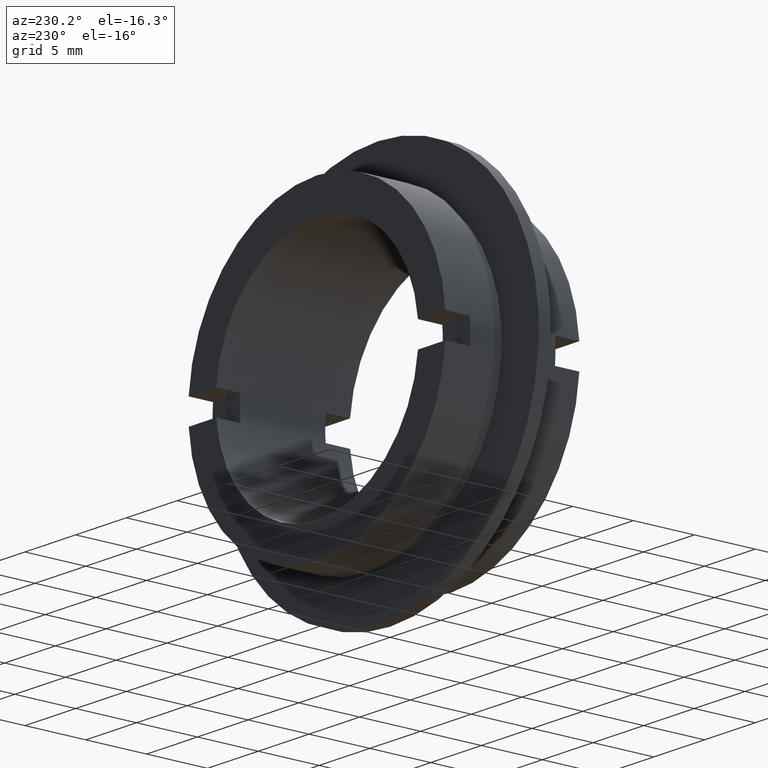
[diagram: clean part render]
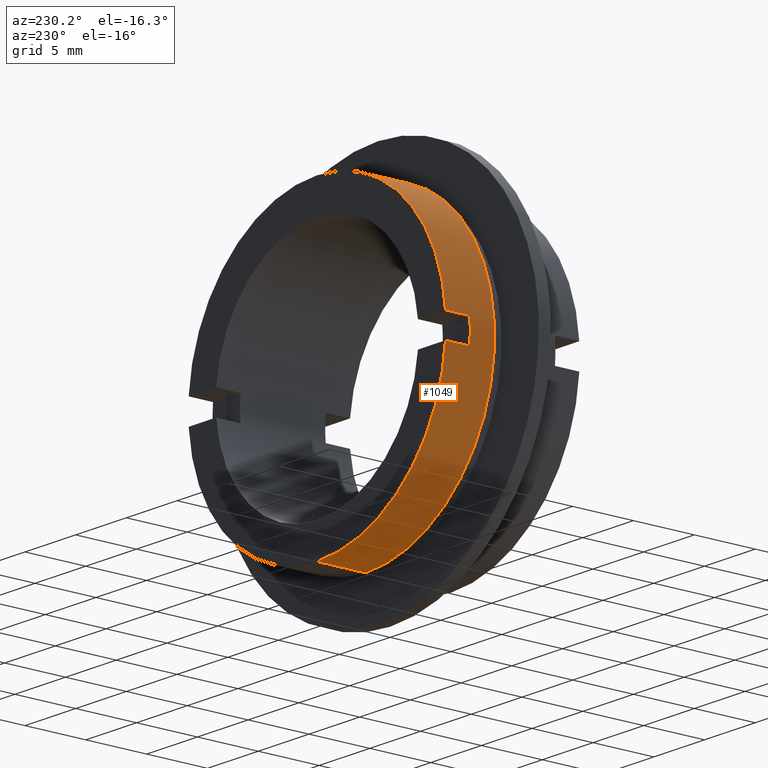
[diagram: same view with one face highlighted and labeled with its STEP entity id]
A machine part, auxiliary view. The second image highlights one B-rep face of the part: STEP entity #1049.
In plain terms, the highlighted cylindrical surface (partial cylindrical patch) has radius 12.7 mm, axis along (-0, 1, -0).
Its self-contained STEP definition (entity closure, byte-faithful):
#1 = EDGE_CURVE ( 'NONE', #981, #309, #409, .T. ) ;
#30 = EDGE_CURVE ( 'NONE', #789, #313, #533, .T. ) ;
#31 = DIRECTION ( 'NONE',  ( 0.0000000000000000000, 0.0000000000000000000, 1.000000000000000000 ) ) ;
#34 = DIRECTION ( 'NONE',  ( 0.0000000000000000000, 0.0000000000000000000, 1.000000000000000000 ) ) ;
#45 = ORIENTED_EDGE ( 'NONE', *, *, #30, .T. ) ;
#86 = CARTESIAN_POINT ( 'NONE',  ( -12.66056870760551300, 9.000000000000000000, -0.9999999999999974500 ) ) ;
#136 = DIRECTION ( 'NONE',  ( -0.0000000000000000000, 1.000000000000000000, -0.0000000000000000000 ) ) ;
#139 = ORIENTED_EDGE ( 'NONE', *, *, #591, .F. ) ;
#186 = CARTESIAN_POINT ( 'NONE',  ( -12.66056870760551300, 11.00000000000000000, -1.000000000000000000 ) ) ;
#196 = CIRCLE ( 'NONE', #801, 12.69999999999999800 ) ;
#200 = VECTOR ( 'NONE', #325, 1000.000000000000000 ) ;
#204 = DIRECTION ( 'NONE',  ( -0.0000000000000000000, 1.000000000000000000, -0.0000000000000000000 ) ) ;
#205 = CARTESIAN_POINT ( 'NONE',  ( 0.0000000000000000000, 6.999999999999999100, 12.69999999999999800 ) ) ;
#250 = AXIS2_PLACEMENT_3D ( 'NONE', #821, #136, #34 ) ;
#262 = CARTESIAN_POINT ( 'NONE',  ( 1.555301434917138200E-015, 6.999999999999999100, -12.69999999999999800 ) ) ;
#266 = AXIS2_PLACEMENT_3D ( 'NONE', #1119, #664, #471 ) ;
#287 = EDGE_CURVE ( 'NONE', #915, #313, #356, .T. ) ;
#289 = CARTESIAN_POINT ( 'NONE',  ( 0.0000000000000000000, 11.00000000000000000, 0.0000000000000000000 ) ) ;
#309 = VERTEX_POINT ( 'NONE', #693 ) ;
#311 = VERTEX_POINT ( 'NONE', #186 ) ;
#312 = DIRECTION ( 'NONE',  ( 0.0000000000000000000, 1.000000000000000000, 0.0000000000000000000 ) ) ;
#313 = VERTEX_POINT ( 'NONE', #1101 ) ;
#325 = DIRECTION ( 'NONE',  ( -0.0000000000000000000, 1.000000000000000000, -0.0000000000000000000 ) ) ;
#334 = AXIS2_PLACEMENT_3D ( 'NONE', #289, #386, #978 ) ;
#346 = EDGE_CURVE ( 'NONE', #426, #915, #749, .T. ) ;
#351 = EDGE_CURVE ( 'NONE', #981, #789, #196, .T. ) ;
#356 = CIRCLE ( 'NONE', #266, 12.69999999999999800 ) ;
#370 = ORIENTED_EDGE ( 'NONE', *, *, #287, .F. ) ;
#386 = DIRECTION ( 'NONE',  ( -0.0000000000000000000, 1.000000000000000000, -0.0000000000000000000 ) ) ;
#404 = DIRECTION ( 'NONE',  ( -0.0000000000000000000, 1.000000000000000000, -0.0000000000000000000 ) ) ;
#409 = LINE ( 'NONE', #610, #1037 ) ;
#426 = VERTEX_POINT ( 'NONE', #598 ) ;
#445 = CARTESIAN_POINT ( 'NONE',  ( -12.66056870760551300, 11.00000000000000000, 1.000000000000003100 ) ) ;
#471 = DIRECTION ( 'NONE',  ( 0.0000000000000000000, 0.0000000000000000000, 1.000000000000000000 ) ) ;
#517 = FACE_OUTER_BOUND ( 'NONE', #831, .T. ) ;
#533 = LINE ( 'NONE', #1072, #557 ) ;
#534 = EDGE_CURVE ( 'NONE', #309, #311, #925, .T. ) ;
#557 = VECTOR ( 'NONE', #204, 1000.000000000000000 ) ;
#564 = AXIS2_PLACEMENT_3D ( 'NONE', #1104, #312, #824 ) ;
#569 = CARTESIAN_POINT ( 'NONE',  ( 0.0000000000000000000, 6.999999999999999100, 0.0000000000000000000 ) ) ;
#591 = EDGE_CURVE ( 'NONE', #683, #426, #954, .T. ) ;
#598 = CARTESIAN_POINT ( 'NONE',  ( -12.66056870760551300, 9.000000000000000000, 1.000000000000001100 ) ) ;
#600 = ORIENTED_EDGE ( 'NONE', *, *, #534, .F. ) ;
#610 = CARTESIAN_POINT ( 'NONE',  ( 1.555301434917138200E-015, 22.67749945107591400, -12.69999999999999800 ) ) ;
#620 = ORIENTED_EDGE ( 'NONE', *, *, #346, .F. ) ;
#640 = CARTESIAN_POINT ( 'NONE',  ( -12.66056870760551300, 22.67749945107591400, -1.000000000000000000 ) ) ;
#664 = DIRECTION ( 'NONE',  ( -0.0000000000000000000, 1.000000000000000000, -0.0000000000000000000 ) ) ;
#683 = VERTEX_POINT ( 'NONE', #86 ) ;
#693 = CARTESIAN_POINT ( 'NONE',  ( 1.555301434917138200E-015, 11.00000000000000000, -12.69999999999999800 ) ) ;
#732 = ORIENTED_EDGE ( 'NONE', *, *, #1134, .F. ) ;
#749 = LINE ( 'NONE', #1094, #200 ) ;
#789 = VERTEX_POINT ( 'NONE', #205 ) ;
#801 = AXIS2_PLACEMENT_3D ( 'NONE', #569, #404, #31 ) ;
#821 = CARTESIAN_POINT ( 'NONE',  ( 0.0000000000000000000, 22.67749945107591400, 0.0000000000000000000 ) ) ;
#824 = DIRECTION ( 'NONE',  ( 0.0000000000000000000, 0.0000000000000000000, -1.000000000000000000 ) ) ;
#831 = EDGE_LOOP ( 'NONE', ( #833, #991, #45, #370, #620, #139, #732, #600 ) ) ;
#833 = ORIENTED_EDGE ( 'NONE', *, *, #1, .F. ) ;
#908 = VECTOR ( 'NONE', #1098, 1000.000000000000000 ) ;
#915 = VERTEX_POINT ( 'NONE', #445 ) ;
#925 = CIRCLE ( 'NONE', #334, 12.69999999999999800 ) ;
#954 = CIRCLE ( 'NONE', #564, 12.69999999999999800 ) ;
#974 = LINE ( 'NONE', #640, #908 ) ;
#978 = DIRECTION ( 'NONE',  ( 0.0000000000000000000, 0.0000000000000000000, 1.000000000000000000 ) ) ;
#981 = VERTEX_POINT ( 'NONE', #262 ) ;
#991 = ORIENTED_EDGE ( 'NONE', *, *, #351, .T. ) ;
#1006 = DIRECTION ( 'NONE',  ( -0.0000000000000000000, 1.000000000000000000, -0.0000000000000000000 ) ) ;
#1037 = VECTOR ( 'NONE', #1006, 1000.000000000000000 ) ;
#1049 = ADVANCED_FACE ( 'NONE', ( #517 ), #1061, .T. ) ;
#1061 = CYLINDRICAL_SURFACE ( 'NONE', #250, 12.69999999999999800 ) ;
#1072 = CARTESIAN_POINT ( 'NONE',  ( 0.0000000000000000000, 22.67749945107591400, 12.69999999999999800 ) ) ;
#1094 = CARTESIAN_POINT ( 'NONE',  ( -12.66056870760551300, 22.67749945107591400, 1.000000000000003100 ) ) ;
#1098 = DIRECTION ( 'NONE',  ( 0.0000000000000000000, -1.000000000000000000, 0.0000000000000000000 ) ) ;
#1101 = CARTESIAN_POINT ( 'NONE',  ( 0.0000000000000000000, 11.00000000000000000, 12.69999999999999800 ) ) ;
#1104 = CARTESIAN_POINT ( 'NONE',  ( 0.0000000000000000000, 9.000000000000000000, 0.0000000000000000000 ) ) ;
#1119 = CARTESIAN_POINT ( 'NONE',  ( 0.0000000000000000000, 11.00000000000000000, 0.0000000000000000000 ) ) ;
#1134 = EDGE_CURVE ( 'NONE', #311, #683, #974, .T. ) ;